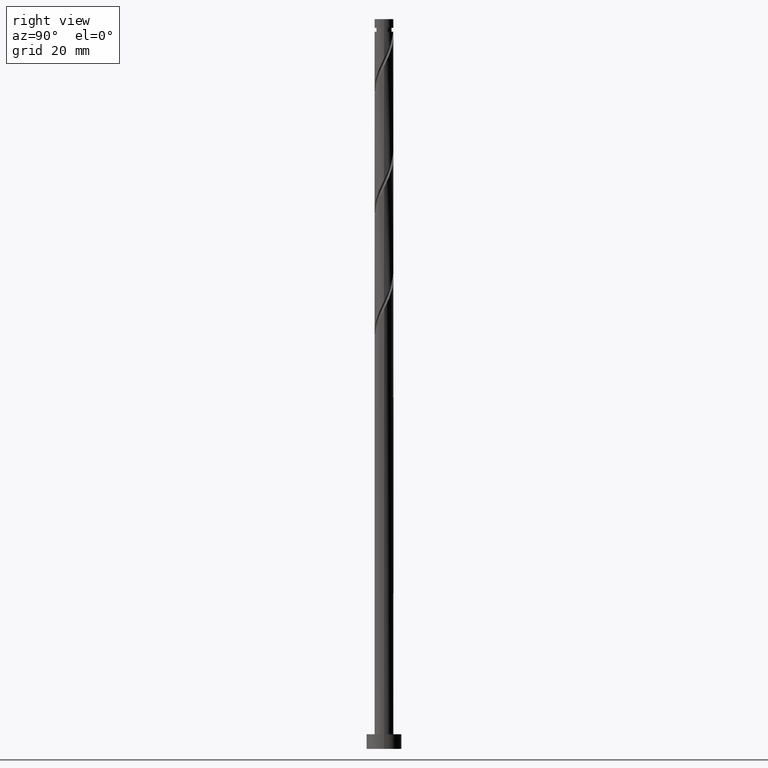
[diagram: clean part render]
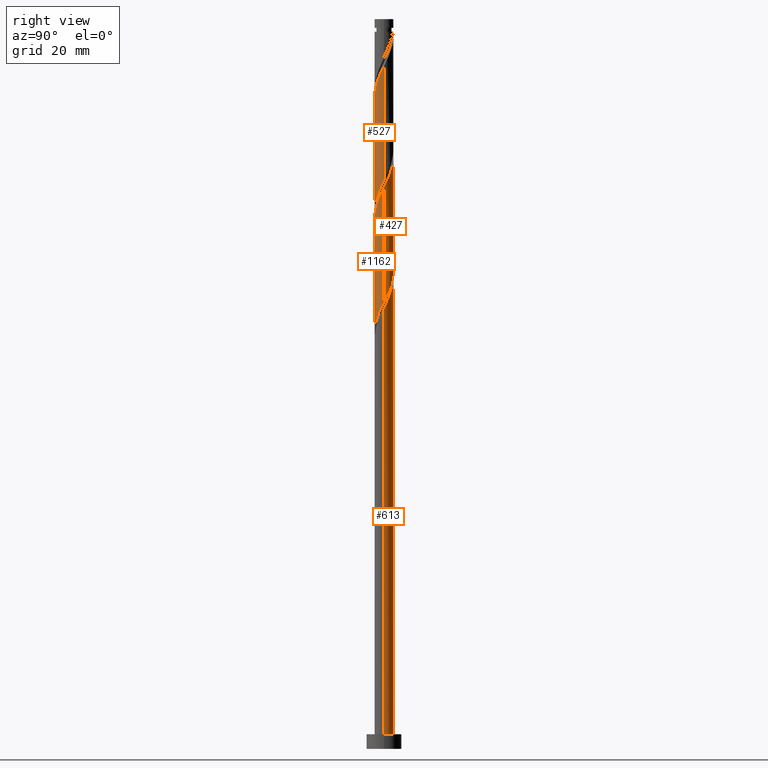
[diagram: same view with one multi-face feature highlighted, each face labeled with its STEP entity id]
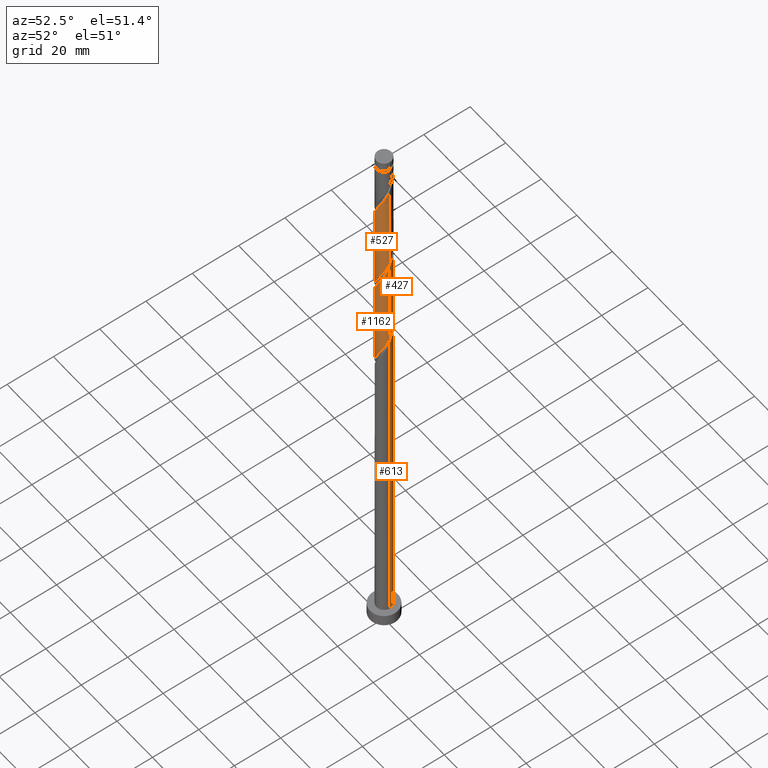
[diagram: same view with one multi-face feature highlighted, each face labeled with its STEP entity id]
A machine part, right view. The highlighted faces form ONE feature: a constant-radius fillet chain: 4 tangent blend faces with common blend radius 3.25 mm. The faces share edges in the B-rep.
A second angle (auxiliary view) of the same feature is appended — it is thin or edge-on in the first view.
Their STEP definitions:
[1] entity #527 (Cylinder):
#38 = CARTESIAN_POINT ( 'NONE',  ( 2.358742199564651365, -2.270365900294405659, 228.8641975902696117 ) ) ;
#43 = CARTESIAN_POINT ( 'NONE',  ( 0.1342716989306146913, -3.247225140156789980, 184.7936847697567941 ) ) ;
#52 = CARTESIAN_POINT ( 'NONE',  ( -0.6467418341193047482, -3.184999999999999165, 183.1911206671927062 ) ) ;
#116 = EDGE_CURVE ( 'NONE', #1040, #1117, #1231, .T. ) ;
#160 = ORIENTED_EDGE ( 'NONE', *, *, #234, .F. ) ;
#162 = CARTESIAN_POINT ( 'NONE',  ( -3.239733877669285445, -0.2581170313674804317, 213.6398386159106337 ) ) ;
#176 = CARTESIAN_POINT ( 'NONE',  ( -3.083821650335325515, -1.025935684593889397, 215.2424027184746933 ) ) ;
#187 = CARTESIAN_POINT ( 'NONE',  ( 3.250000000000004441, -1.719932931327951280E-15, 233.9465321246341318 ) ) ;
#190 = CARTESIAN_POINT ( 'NONE',  ( 3.208392795817199605, -0.6514919439064300599, 193.6077873338593918 ) ) ;
#197 = CARTESIAN_POINT ( 'NONE',  ( -3.250000000000003997, -0.1292626735945020811, 213.3773697069337913 ) ) ;
#201 = CARTESIAN_POINT ( 'NONE',  ( -2.833535561689597859, -1.639909237082070481, 177.5821463082183129 ) ) ;
#219 = CARTESIAN_POINT ( 'NONE',  ( 0.5285562154176349781, -3.230921604182013240, 185.5949668210388097 ) ) ;
#233 = VERTEX_POINT ( 'NONE', #187 ) ;
#234 = EDGE_CURVE ( 'NONE', #233, #1040, #739, .T. ) ;
#261 = CARTESIAN_POINT ( 'NONE',  ( 0.000000000000000000, 0.000000000000000000, 250.0000000000000000 ) ) ;
#306 = CARTESIAN_POINT ( 'NONE',  ( -2.538127330985534780, -2.067881944631017710, 217.6462488723208537 ) ) ;
#321 = CARTESIAN_POINT ( 'NONE',  ( 2.959250504853443875, -1.400379425281347734, 192.0052232312953322 ) ) ;
#333 = CARTESIAN_POINT ( 'NONE',  ( -2.596138880627123502, -1.955137568688235516, 178.3834283595004422 ) ) ;
#393 = CARTESIAN_POINT ( 'NONE',  ( -3.250000000000000444, 0.000000000000000000, 250.0000000000000000 ) ) ;
#438 = CARTESIAN_POINT ( 'NONE',  ( -1.627952452366745018, -2.812875897161679628, 220.0500950261670141 ) ) ;
#451 = CARTESIAN_POINT ( 'NONE',  ( -0.1342716989306176611, -3.247225140156793977, 223.2552232312952469 ) ) ;
#459 = CARTESIAN_POINT ( 'NONE',  ( 0.2600128175564029864, -3.263528676131572936, 224.0565052825773762 ) ) ;
#462 = CARTESIAN_POINT ( 'NONE',  ( 3.239733877669281892, -0.2581170313674834849, 194.4090693851414073 ) ) ;
#472 = CARTESIAN_POINT ( 'NONE',  ( -2.052804757022350213, -2.519621525060145029, 179.9859924620644733 ) ) ;
#481 = CARTESIAN_POINT ( 'NONE',  ( 3.250000000000000444, 3.980102097228898231E-16, 250.0000000000000000 ) ) ;
#494 = CARTESIAN_POINT ( 'NONE',  ( 3.083821650335321518, -1.025935684593890507, 192.8065052825773478 ) ) ;
#527 = ADVANCED_FACE ( 'NONE', ( #618 ), #536, .T. ) ;
#528 = CARTESIAN_POINT ( 'NONE',  ( -3.250000000000004441, -3.275350538789750667E-15, 213.1131987913008174 ) ) ;
#536 = CYLINDRICAL_SURFACE ( 'NONE', #865, 3.250000000000000444 ) ;
#588 = CARTESIAN_POINT ( 'NONE',  ( -2.748688917919491992, -1.734130684956183055, 216.8449668210388666 ) ) ;
#599 = CARTESIAN_POINT ( 'NONE',  ( -2.253812376671873619, -2.341544313217391871, 218.4475309236028977 ) ) ;
#614 = CARTESIAN_POINT ( 'NONE',  ( -1.033470850682205233, -3.106471323868431167, 182.3898386159106053 ) ) ;
#618 = FACE_OUTER_BOUND ( 'NONE', #685, .T. ) ;
#624 = CARTESIAN_POINT ( 'NONE',  ( -3.207364547986603753, -0.5247024455047699654, 175.1783001543721809 ) ) ;
#646 = VECTOR ( 'NONE', #1063, 1000.000000000000000 ) ;
#685 = EDGE_LOOP ( 'NONE', ( #160, #953, #1434, #830 ) ) ;
#728 = CARTESIAN_POINT ( 'NONE',  ( 1.390169082581127480, -2.937674236847164888, 226.4603514364234513 ) ) ;
#739 = LINE ( 'NONE', #481, #646 ) ;
#741 = CARTESIAN_POINT ( 'NONE',  ( 2.052804757022351545, -2.519621525060148581, 228.0629155389875393 ) ) ;
#756 = CARTESIAN_POINT ( 'NONE',  ( 1.627952452366741243, -2.812875897161677852, 187.9988129748850270 ) ) ;
#763 = CARTESIAN_POINT ( 'NONE',  ( -0.5285562154176384198, -3.230921604182017681, 222.4539411800132029 ) ) ;
#767 = CARTESIAN_POINT ( 'NONE',  ( -2.988594849070721260, -1.277028123460071773, 176.7808642569362974 ) ) ;
#774 = CARTESIAN_POINT ( 'NONE',  ( 1.033470850682204567, -3.106471323868436052, 225.6590693851414073 ) ) ;
#830 = ORIENTED_EDGE ( 'NONE', *, *, #116, .F. ) ;
#836 = CARTESIAN_POINT ( 'NONE',  ( 3.250000000000000000, 4.815812207718297189E-15, 194.9357092097512520 ) ) ;
#865 = AXIS2_PLACEMENT_3D ( 'NONE', #261, #943, #1671 ) ;
#883 = CARTESIAN_POINT ( 'NONE',  ( 2.833535561689601412, -1.639909237082075810, 230.4667616928336997 ) ) ;
#893 = CARTESIAN_POINT ( 'NONE',  ( 2.596138880627125722, -1.955137568688240179, 229.6654796415516273 ) ) ;
#899 = CARTESIAN_POINT ( 'NONE',  ( 2.748688917919487995, -1.734130684956182611, 191.2039411800131461 ) ) ;
#920 = CARTESIAN_POINT ( 'NONE',  ( 0.9074818488964557783, -3.120733358350801456, 186.3962488723209106 ) ) ;
#943 = DIRECTION ( 'NONE',  ( -0.000000000000000000, -0.000000000000000000, -1.000000000000000000 ) ) ;
#953 = ORIENTED_EDGE ( 'NONE', *, *, #1563, .F. ) ;
#954 = EDGE_CURVE ( 'NONE', #1449, #1117, #1403, .T. ) ;
#987 = DIRECTION ( 'NONE',  ( -0.000000000000000000, -0.000000000000000000, -1.000000000000000000 ) ) ;
#1020 = CARTESIAN_POINT ( 'NONE',  ( 0.6467418341193043041, -3.185000000000004050, 224.8577873338593065 ) ) ;
#1040 = VERTEX_POINT ( 'NONE', #836 ) ;
#1046 = CARTESIAN_POINT ( 'NONE',  ( -2.358742199564648256, -2.270365900294400774, 179.1847104107824293 ) ) ;
#1058 = CARTESIAN_POINT ( 'NONE',  ( 2.253812376671869622, -2.341544313217390982, 189.6013770774490865 ) ) ;
#1063 = DIRECTION ( 'NONE',  ( -0.000000000000000000, -0.000000000000000000, -1.000000000000000000 ) ) ;
#1117 = VERTEX_POINT ( 'NONE', #1285 ) ;
#1160 = CARTESIAN_POINT ( 'NONE',  ( -1.969497422358212013, -2.615206681803767808, 219.2488129748849417 ) ) ;
#1171 = CARTESIAN_POINT ( 'NONE',  ( 1.746867314480051059, -2.768877149825894612, 227.2616334877054953 ) ) ;
#1179 = CARTESIAN_POINT ( 'NONE',  ( 3.143654136451849102, -0.9141470098380763964, 232.0693257953977877 ) ) ;
#1183 = CARTESIAN_POINT ( 'NONE',  ( -1.390169082581128146, -2.937674236847160003, 181.5885565646285897 ) ) ;
#1194 = CARTESIAN_POINT ( 'NONE',  ( -3.249999999999999112, -0.2640834252453963527, 174.6420766137662213 ) ) ;
#1231 =( BOUNDED_CURVE ( )  B_SPLINE_CURVE ( 2, ( #1314, #1736, #462, #190, #494, #321, #899, #1457, #1058, #1469, #756, #1323, #920, #219, #43, #1482, #52, #614, #1183, #1746, #472, #1046, #333, #201, #767, #1333, #624, #1194, #1755 ),
 .UNSPECIFIED., .F., .T. ) 
 B_SPLINE_CURVE_WITH_KNOTS ( ( 3, 2, 2, 2, 2, 2, 2, 2, 2, 2, 2, 2, 2, 2, 3 ),
 ( 0.5545271625973831053, 0.5576923076923077094, 0.5673076923076922906, 0.5769230769230768718, 0.5865384615384615641, 0.5961538461538461453, 0.6057692307692307265, 0.6153846153846154188, 0.6250000000000000000, 0.6346153846153845812, 0.6442307692307692735, 0.6538461538461538547, 0.6634615384615384359, 0.6730769230769231282, 0.6795271625973833274 ),
 .UNSPECIFIED. ) 
 CURVE ( )  GEOMETRIC_REPRESENTATION_ITEM ( )  RATIONAL_B_SPLINE_CURVE ( ( 0.9061636035682859580, 0.9069090390690746073, 0.9090909090909312651, 0.9024626128164348060, 0.9090909090909312651, 0.9024626128164348060, 0.9090909090909312651, 0.9024626128164348060, 0.9090909090909312651, 0.9024626128164348060, 0.9090909090909312651, 0.9024626128164348060, 0.9090909090909312651, 0.9024626128164348060, 0.9090909090909312651, 0.9024626128164348060, 0.9090909090909312651, 0.9024626128164348060, 0.9090909090909312651, 0.9024626128164348060, 0.9090909090909312651, 0.9024626128164348060, 0.9090909090909312651, 0.9024626128164348060, 0.9090909090909312651, 0.9024626128164348060, 0.9090909090909312651, 0.9046444828382913528, 0.9061636035682860690 ) ) 
 REPRESENTATION_ITEM ( '' )  );
#1285 = CARTESIAN_POINT ( 'NONE',  ( -3.249999999999999556, 2.931363952524181395E-15, 174.1023758764178808 ) ) ;
#1314 = CARTESIAN_POINT ( 'NONE',  ( 3.250000000000000000, 4.815812207718297189E-15, 194.9357092097512805 ) ) ;
#1323 = CARTESIAN_POINT ( 'NONE',  ( 1.286407482375274691, -3.010545112519589228, 187.1975309236029261 ) ) ;
#1329 = CARTESIAN_POINT ( 'NONE',  ( 3.250000000000002665, -0.2640834252454066777, 233.4068313872857345 ) ) ;
#1333 = CARTESIAN_POINT ( 'NONE',  ( -3.143654136451844661, -0.9141470098380726217, 175.9795822056541965 ) ) ;
#1371 = VECTOR ( 'NONE', #987, 1000.000000000000000 ) ;
#1403 = LINE ( 'NONE', #393, #1371 ) ;
#1430 = CARTESIAN_POINT ( 'NONE',  ( -0.9074818488964582208, -3.120733358350804121, 221.6526591287310737 ) ) ;
#1434 = ORIENTED_EDGE ( 'NONE', *, *, #954, .T. ) ;
#1449 = VERTEX_POINT ( 'NONE', #528 ) ;
#1457 = CARTESIAN_POINT ( 'NONE',  ( 2.538127330985529007, -2.067881944631016822, 190.4026591287310737 ) ) ;
#1465 = CARTESIAN_POINT ( 'NONE',  ( 2.988594849070723924, -1.277028123460074660, 231.2680437441157153 ) ) ;
#1469 = CARTESIAN_POINT ( 'NONE',  ( 1.969497422358207128, -2.615206681803765587, 188.8000950261670425 ) ) ;
#1476 = CARTESIAN_POINT ( 'NONE',  ( 3.250000000000004441, -1.719932931327951280E-15, 233.9465321246341318 ) ) ;
#1482 = CARTESIAN_POINT ( 'NONE',  ( -0.2600128175564051514, -3.263528676131567163, 183.9924027184747217 ) ) ;
#1563 = EDGE_CURVE ( 'NONE', #1449, #233, #1835, .T. ) ;
#1591 = CARTESIAN_POINT ( 'NONE',  ( 3.207364547986608638, -0.5247024455047721858, 232.8706078466798317 ) ) ;
#1607 = CARTESIAN_POINT ( 'NONE',  ( -2.959250504853448760, -1.400379425281349732, 216.0436847697567373 ) ) ;
#1670 = CARTESIAN_POINT ( 'NONE',  ( -3.250000000000004441, -3.275350538789750667E-15, 213.1131987913008459 ) ) ;
#1671 = DIRECTION ( 'NONE',  ( -1.000000000000000000, 0.000000000000000000, 0.000000000000000000 ) ) ;
#1723 = CARTESIAN_POINT ( 'NONE',  ( -1.286407482375277800, -3.010545112519592781, 220.8513770774491149 ) ) ;
#1732 = CARTESIAN_POINT ( 'NONE',  ( -3.208392795817203602, -0.6514919439064299489, 214.4411206671926777 ) ) ;
#1736 = CARTESIAN_POINT ( 'NONE',  ( 3.250000000000000888, -0.1292626735944912009, 194.6715382941182781 ) ) ;
#1746 = CARTESIAN_POINT ( 'NONE',  ( -1.746867314480051059, -2.768877149825889283, 180.7872745133465457 ) ) ;
#1755 = CARTESIAN_POINT ( 'NONE',  ( -3.249999999999999112, 2.931363952524181000E-15, 174.1023758764178808 ) ) ;
#1835 =( BOUNDED_CURVE ( )  B_SPLINE_CURVE ( 2, ( #1670, #197, #162, #1732, #176, #1607, #588, #306, #599, #1160, #438, #1723, #1430, #763, #451, #459, #1020, #774, #728, #1171, #741, #38, #893, #883, #1465, #1179, #1591, #1329, #1476 ),
 .UNSPECIFIED., .F., .T. ) 
 B_SPLINE_CURVE_WITH_KNOTS ( ( 3, 2, 2, 2, 2, 2, 2, 2, 2, 2, 2, 2, 2, 2, 3 ),
 ( 0.5545271625973834384, 0.5576923076923077094, 0.5673076923076922906, 0.5769230769230768718, 0.5865384615384615641, 0.5961538461538461453, 0.6057692307692308376, 0.6153846153846154188, 0.6250000000000000000, 0.6346153846153845812, 0.6442307692307691624, 0.6538461538461538547, 0.6634615384615384359, 0.6730769230769231282, 0.6795271625973831053 ),
 .UNSPECIFIED. ) 
 CURVE ( )  GEOMETRIC_REPRESENTATION_ITEM ( )  RATIONAL_B_SPLINE_CURVE ( ( 0.9061636035682922863, 0.9069090390690809356, 0.9090909090909373713, 0.9024626128164408012, 0.9090909090909373713, 0.9024626128164408012, 0.9090909090909373713, 0.9024626128164408012, 0.9090909090909373713, 0.9024626128164408012, 0.9090909090909373713, 0.9024626128164408012, 0.9090909090909373713, 0.9024626128164408012, 0.9090909090909373713, 0.9024626128164408012, 0.9090909090909373713, 0.9024626128164408012, 0.9090909090909373713, 0.9024626128164408012, 0.9090909090909373713, 0.9024626128164408012, 0.9090909090909373713, 0.9024626128164408012, 0.9090909090909373713, 0.9024626128164408012, 0.9090909090909373713, 0.9046444828382974590, 0.9061636035682920642 ) ) 
 REPRESENTATION_ITEM ( '' )  );
[2] entity #427 (Cylinder):
#26 = CARTESIAN_POINT ( 'NONE',  ( -2.596138880627126166, 1.955137568688239291, 208.8321463082182845 ) ) ;
#48 = CARTESIAN_POINT ( 'NONE',  ( 2.748688917919491992, 1.734130684956183499, 196.0116334877054953 ) ) ;
#74 = CARTESIAN_POINT ( 'NONE',  ( 0.6467418341193049702, 3.184999999999999165, 162.3577873338593633 ) ) ;
#96 = CARTESIAN_POINT ( 'NONE',  ( -1.627952452366741465, 2.812875897161677852, 167.1654796415516557 ) ) ;
#147 = AXIS2_PLACEMENT_3D ( 'NONE', #1514, #216, #357 ) ;
#174 = CARTESIAN_POINT ( 'NONE',  ( -2.052804757022351545, 2.519621525060148581, 207.2295822056542534 ) ) ;
#185 = CARTESIAN_POINT ( 'NONE',  ( 3.143654136451844661, 0.9141470098380707343, 155.1462488723209106 ) ) ;
#194 = CARTESIAN_POINT ( 'NONE',  ( 3.249999999999998224, 0.2640834252454046793, 153.8087432804328785 ) ) ;
#211 = EDGE_CURVE ( 'NONE', #1009, #1449, #1609, .T. ) ;
#216 = DIRECTION ( 'NONE',  ( -0.000000000000000000, -0.000000000000000000, -1.000000000000000000 ) ) ;
#235 = CYLINDRICAL_SURFACE ( 'NONE', #147, 3.250000000000000444 ) ;
#295 = CARTESIAN_POINT ( 'NONE',  ( 3.208392795817203602, 0.6514919439064295048, 193.6077873338593918 ) ) ;
#316 = CARTESIAN_POINT ( 'NONE',  ( 2.538127330985536112, 2.067881944631015934, 196.8129155389875393 ) ) ;
#327 = CARTESIAN_POINT ( 'NONE',  ( -1.390169082581128590, 2.937674236847164444, 205.6270181030900801 ) ) ;
#337 = CARTESIAN_POINT ( 'NONE',  ( 3.207364547986603753, 0.5247024455047700764, 154.3449668210388097 ) ) ;
#357 = DIRECTION ( 'NONE',  ( -1.000000000000000000, 0.000000000000000000, 0.000000000000000000 ) ) ;
#368 = CARTESIAN_POINT ( 'NONE',  ( -3.250000000000000000, 0.1292626735944986394, 173.8382049607849069 ) ) ;
#393 = CARTESIAN_POINT ( 'NONE',  ( -3.250000000000000444, 0.000000000000000000, 250.0000000000000000 ) ) ;
#402 = CARTESIAN_POINT ( 'NONE',  ( -0.5285562154176360883, 3.230921604182012352, 164.7616334877054669 ) ) ;
#406 = EDGE_LOOP ( 'NONE', ( #1177, #914, #891, #1367 ) ) ;
#413 = CARTESIAN_POINT ( 'NONE',  ( 3.250000000000000000, 4.815812207718297189E-15, 153.2690425430845664 ) ) ;
#427 = ADVANCED_FACE ( 'NONE', ( #1244 ), #235, .T. ) ;
#466 = CARTESIAN_POINT ( 'NONE',  ( 2.988594849070721704, 1.277028123460071329, 155.9475309236029545 ) ) ;
#491 = CARTESIAN_POINT ( 'NONE',  ( -2.833535561689601412, 1.639909237082074922, 209.6334283595004138 ) ) ;
#528 = CARTESIAN_POINT ( 'NONE',  ( -3.250000000000004441, -3.275350538789750667E-15, 213.1131987913008174 ) ) ;
#529 = CARTESIAN_POINT ( 'NONE',  ( -0.9074818488964560004, 3.120733358350801456, 165.5629155389875962 ) ) ;
#543 = CARTESIAN_POINT ( 'NONE',  ( -3.083821650335321962, 1.025935684593889397, 171.9731719492439765 ) ) ;
#553 = EDGE_CURVE ( 'NONE', #1117, #1136, #900, .T. ) ;
#555 = CARTESIAN_POINT ( 'NONE',  ( 3.250000000000000444, 3.980102097228898231E-16, 250.0000000000000000 ) ) ;
#560 = CARTESIAN_POINT ( 'NONE',  ( 3.250000000000003553, 1.286210713862641960E-15, 192.2798654579674462 ) ) ;
#578 = CARTESIAN_POINT ( 'NONE',  ( 3.239733877669285445, 0.2581170313674792105, 192.8065052825772625 ) ) ;
#620 = CARTESIAN_POINT ( 'NONE',  ( 2.253812376671874063, 2.341544313217391871, 197.6141975902696117 ) ) ;
#666 = CARTESIAN_POINT ( 'NONE',  ( 0.2600128175564044852, 3.263528676131567607, 163.1590693851414358 ) ) ;
#727 = CARTESIAN_POINT ( 'NONE',  ( 1.627952452366745684, 2.812875897161679628, 199.2167616928336713 ) ) ;
#801 = CARTESIAN_POINT ( 'NONE',  ( -3.208392795817199605, 0.6514919439064297269, 172.7744540005260490 ) ) ;
#871 = CARTESIAN_POINT ( 'NONE',  ( 3.083821650335326403, 1.025935684593887620, 194.4090693851413789 ) ) ;
#882 = CARTESIAN_POINT ( 'NONE',  ( -3.250000000000004441, 0.2640834252453932995, 212.5734980539524486 ) ) ;
#891 = ORIENTED_EDGE ( 'NONE', *, *, #553, .F. ) ;
#892 = CARTESIAN_POINT ( 'NONE',  ( -3.143654136451849546, 0.9141470098380747311, 211.2359924620644449 ) ) ;
#900 =( BOUNDED_CURVE ( )  B_SPLINE_CURVE ( 2, ( #1502, #368, #971, #801, #543, #1662, #1789, #1088, #963, #952, #96, #1512, #529, #402, #1374, #666, #74, #1029, #1208, #924, #1189, #1448, #1616, #1078, #466, #185, #337, #194, #1646 ),
 .UNSPECIFIED., .F., .T. ) 
 B_SPLINE_CURVE_WITH_KNOTS ( ( 3, 2, 2, 2, 2, 2, 2, 2, 2, 2, 2, 2, 2, 2, 3 ),
 ( 0.6795271625973833274, 0.6826923076923077094, 0.6923076923076922906, 0.7019230769230768718, 0.7115384615384615641, 0.7211538461538461453, 0.7307692307692307265, 0.7403846153846154188, 0.7500000000000000000, 0.7596153846153845812, 0.7692307692307692735, 0.7788461538461538547, 0.7884615384615384359, 0.7980769230769231282, 0.8045271625973831053 ),
 .UNSPECIFIED. ) 
 CURVE ( )  GEOMETRIC_REPRESENTATION_ITEM ( )  RATIONAL_B_SPLINE_CURVE ( ( 0.9061636035682860690, 0.9069090390690747183, 0.9090909090909312651, 0.9024626128164348060, 0.9090909090909312651, 0.9024626128164348060, 0.9090909090909312651, 0.9024626128164348060, 0.9090909090909312651, 0.9024626128164348060, 0.9090909090909312651, 0.9024626128164348060, 0.9090909090909312651, 0.9024626128164348060, 0.9090909090909312651, 0.9024626128164348060, 0.9090909090909312651, 0.9024626128164348060, 0.9090909090909312651, 0.9024626128164348060, 0.9090909090909312651, 0.9024626128164348060, 0.9090909090909312651, 0.9024626128164348060, 0.9090909090909312651, 0.9024626128164348060, 0.9090909090909312651, 0.9046444828382914638, 0.9061636035682859580 ) ) 
 REPRESENTATION_ITEM ( '' )  );
#914 = ORIENTED_EDGE ( 'NONE', *, *, #1111, .T. ) ;
#915 = CARTESIAN_POINT ( 'NONE',  ( -2.988594849070723924, 1.277028123460074660, 210.4347104107824009 ) ) ;
#924 = CARTESIAN_POINT ( 'NONE',  ( 1.746867314480051059, 2.768877149825889283, 159.9539411800131745 ) ) ;
#952 = CARTESIAN_POINT ( 'NONE',  ( -1.969497422358208016, 2.615206681803764255, 167.9667616928336713 ) ) ;
#954 = EDGE_CURVE ( 'NONE', #1449, #1117, #1403, .T. ) ;
#963 = CARTESIAN_POINT ( 'NONE',  ( -2.253812376671869622, 2.341544313217390982, 168.7680437441157437 ) ) ;
#971 = CARTESIAN_POINT ( 'NONE',  ( -3.239733877669281892, 0.2581170313674815975, 173.5757360518080645 ) ) ;
#987 = DIRECTION ( 'NONE',  ( -0.000000000000000000, -0.000000000000000000, -1.000000000000000000 ) ) ;
#1009 = VERTEX_POINT ( 'NONE', #1270 ) ;
#1029 = CARTESIAN_POINT ( 'NONE',  ( 1.033470850682205677, 3.106471323868431167, 161.5565052825773478 ) ) ;
#1031 = CARTESIAN_POINT ( 'NONE',  ( -3.207364547986608194, 0.5247024455047719638, 212.0372745133464605 ) ) ;
#1041 = CARTESIAN_POINT ( 'NONE',  ( 2.959250504853449648, 1.400379425281348400, 195.2103514364234513 ) ) ;
#1053 = CARTESIAN_POINT ( 'NONE',  ( -1.033470850682205011, 3.106471323868435608, 204.8257360518080645 ) ) ;
#1078 = CARTESIAN_POINT ( 'NONE',  ( 2.833535561689597859, 1.639909237082068927, 156.7488129748849133 ) ) ;
#1088 = CARTESIAN_POINT ( 'NONE',  ( -2.538127330985530783, 2.067881944631015934, 169.5693257953977877 ) ) ;
#1111 = EDGE_CURVE ( 'NONE', #1009, #1136, #1564, .T. ) ;
#1117 = VERTEX_POINT ( 'NONE', #1285 ) ;
#1136 = VERTEX_POINT ( 'NONE', #413 ) ;
#1145 = DIRECTION ( 'NONE',  ( -0.000000000000000000, -0.000000000000000000, -1.000000000000000000 ) ) ;
#1177 = ORIENTED_EDGE ( 'NONE', *, *, #211, .F. ) ;
#1189 = CARTESIAN_POINT ( 'NONE',  ( 2.052804757022351545, 2.519621525060143696, 159.1526591287311589 ) ) ;
#1190 = CARTESIAN_POINT ( 'NONE',  ( -2.358742199564651365, 2.270365900294405659, 208.0308642569362405 ) ) ;
#1208 = CARTESIAN_POINT ( 'NONE',  ( 1.390169082581129256, 2.937674236847159559, 160.7552232312952754 ) ) ;
#1244 = FACE_OUTER_BOUND ( 'NONE', #406, .T. ) ;
#1270 = CARTESIAN_POINT ( 'NONE',  ( 3.250000000000003553, 1.286210713862641960E-15, 192.2798654579674462 ) ) ;
#1285 = CARTESIAN_POINT ( 'NONE',  ( -3.249999999999999556, 2.931363952524181395E-15, 174.1023758764178808 ) ) ;
#1291 = CARTESIAN_POINT ( 'NONE',  ( 3.250000000000005329, 0.1292626735944855110, 192.5440363736003917 ) ) ;
#1301 = CARTESIAN_POINT ( 'NONE',  ( 0.1342716989306194375, 3.247225140156793977, 202.4218898979618757 ) ) ;
#1310 = CARTESIAN_POINT ( 'NONE',  ( -0.6467418341193038600, 3.185000000000004050, 204.0244540005259921 ) ) ;
#1328 = CARTESIAN_POINT ( 'NONE',  ( 0.9074818488964597751, 3.120733358350804121, 200.8193257953977877 ) ) ;
#1367 = ORIENTED_EDGE ( 'NONE', *, *, #954, .F. ) ;
#1371 = VECTOR ( 'NONE', #987, 1000.000000000000000 ) ;
#1374 = CARTESIAN_POINT ( 'NONE',  ( -0.1342716989306157460, 3.247225140156789092, 163.9603514364234798 ) ) ;
#1403 = LINE ( 'NONE', #393, #1371 ) ;
#1448 = CARTESIAN_POINT ( 'NONE',  ( 2.358742199564649145, 2.270365900294400774, 158.3513770774490297 ) ) ;
#1449 = VERTEX_POINT ( 'NONE', #528 ) ;
#1450 = CARTESIAN_POINT ( 'NONE',  ( -0.2600128175564026534, 3.263528676131572936, 203.2231719492440050 ) ) ;
#1463 = CARTESIAN_POINT ( 'NONE',  ( -1.746867314480052169, 2.768877149825894612, 206.4283001543721241 ) ) ;
#1475 = CARTESIAN_POINT ( 'NONE',  ( -3.250000000000004441, -3.275350538789750667E-15, 213.1131987913008459 ) ) ;
#1502 = CARTESIAN_POINT ( 'NONE',  ( -3.249999999999999112, 2.931363952524181000E-15, 174.1023758764178808 ) ) ;
#1512 = CARTESIAN_POINT ( 'NONE',  ( -1.286407482375275357, 3.010545112519589228, 166.3641975902695549 ) ) ;
#1514 = CARTESIAN_POINT ( 'NONE',  ( 0.000000000000000000, 0.000000000000000000, 250.0000000000000000 ) ) ;
#1564 = LINE ( 'NONE', #555, #1570 ) ;
#1570 = VECTOR ( 'NONE', #1145, 1000.000000000000000 ) ;
#1580 = CARTESIAN_POINT ( 'NONE',  ( 0.5285562154176385308, 3.230921604182017681, 201.6206078466798317 ) ) ;
#1590 = CARTESIAN_POINT ( 'NONE',  ( 1.286407482375278466, 3.010545112519593225, 200.0180437441157721 ) ) ;
#1605 = CARTESIAN_POINT ( 'NONE',  ( 1.969497422358213345, 2.615206681803766919, 198.4154796415516557 ) ) ;
#1609 =( BOUNDED_CURVE ( )  B_SPLINE_CURVE ( 2, ( #560, #1291, #578, #295, #871, #1041, #48, #316, #620, #1605, #727, #1590, #1328, #1580, #1301, #1450, #1310, #1053, #327, #1463, #174, #1190, #26, #491, #915, #892, #1031, #882, #1475 ),
 .UNSPECIFIED., .F., .T. ) 
 B_SPLINE_CURVE_WITH_KNOTS ( ( 3, 2, 2, 2, 2, 2, 2, 2, 2, 2, 2, 2, 2, 2, 3 ),
 ( 0.4295271625973830498, 0.4326923076923077094, 0.4423076923076922906, 0.4519230769230768718, 0.4615384615384615641, 0.4711538461538461453, 0.4807692307692307265, 0.4903846153846154188, 0.5000000000000000000, 0.5096153846153845812, 0.5192307692307691624, 0.5288461538461538547, 0.5384615384615384359, 0.5480769230769231282, 0.5545271625973834384 ),
 .UNSPECIFIED. ) 
 CURVE ( )  GEOMETRIC_REPRESENTATION_ITEM ( )  RATIONAL_B_SPLINE_CURVE ( ( 0.9061636035682919532, 0.9069090390690806025, 0.9090909090909373713, 0.9024626128164408012, 0.9090909090909373713, 0.9024626128164408012, 0.9090909090909373713, 0.9024626128164408012, 0.9090909090909373713, 0.9024626128164408012, 0.9090909090909373713, 0.9024626128164408012, 0.9090909090909373713, 0.9024626128164408012, 0.9090909090909373713, 0.9024626128164408012, 0.9090909090909373713, 0.9024626128164408012, 0.9090909090909373713, 0.9024626128164408012, 0.9090909090909373713, 0.9024626128164408012, 0.9090909090909373713, 0.9024626128164408012, 0.9090909090909373713, 0.9024626128164408012, 0.9090909090909373713, 0.9046444828382973480, 0.9061636035682922863 ) ) 
 REPRESENTATION_ITEM ( '' )  );
#1616 = CARTESIAN_POINT ( 'NONE',  ( 2.596138880627123946, 1.955137568688235072, 157.5500950261670425 ) ) ;
#1646 = CARTESIAN_POINT ( 'NONE',  ( 3.250000000000000000, 4.815812207718297189E-15, 153.2690425430845664 ) ) ;
#1662 = CARTESIAN_POINT ( 'NONE',  ( -2.959250504853443875, 1.400379425281347956, 171.1718898979619041 ) ) ;
#1789 = CARTESIAN_POINT ( 'NONE',  ( -2.748688917919487995, 1.734130684956181945, 170.3706078466798317 ) ) ;
[3] entity #1162 (Cylinder):
#1 = ORIENTED_EDGE ( 'NONE', *, *, #1600, .T. ) ;
#15 = CARTESIAN_POINT ( 'NONE',  ( -1.969497422358212013, -2.615206681803767808, 177.5821463082183413 ) ) ;
#60 = DIRECTION ( 'NONE',  ( -0.000000000000000000, -0.000000000000000000, -1.000000000000000000 ) ) ;
#69 = CARTESIAN_POINT ( 'NONE',  ( 3.250000000000000000, 4.815812207718297189E-15, 153.2690425430845664 ) ) ;
#80 = CARTESIAN_POINT ( 'NONE',  ( 1.286407482375274691, -3.010545112519589228, 145.5308642569362974 ) ) ;
#86 = CARTESIAN_POINT ( 'NONE',  ( -1.390169082581128146, -2.937674236847160003, 139.9218898979618757 ) ) ;
#97 = CARTESIAN_POINT ( 'NONE',  ( 1.969497422358207128, -2.615206681803765587, 147.1334283595003569 ) ) ;
#134 = CARTESIAN_POINT ( 'NONE',  ( -3.249999999999999556, 2.931363952524181395E-15, 132.4357092097512236 ) ) ;
#161 = CARTESIAN_POINT ( 'NONE',  ( -2.538127330985534780, -2.067881944631017710, 175.9795822056541965 ) ) ;
#195 = VERTEX_POINT ( 'NONE', #134 ) ;
#243 = CARTESIAN_POINT ( 'NONE',  ( 2.052804757022351545, -2.519621525060148581, 186.3962488723208537 ) ) ;
#249 = CARTESIAN_POINT ( 'NONE',  ( 1.746867314480051059, -2.768877149825894612, 185.5949668210388381 ) ) ;
#264 = CARTESIAN_POINT ( 'NONE',  ( -3.250000000000003997, 7.328409881310404775E-15, 171.4465321246341034 ) ) ;
#332 =( BOUNDED_CURVE ( )  B_SPLINE_CURVE ( 2, ( #69, #1210, #1769, #1654, #511, #1504, #379, #1647, #500, #97, #1495, #80, #1780, #370, #802, #1080, #944, #1364, #86, #520, #390, #955, #812, #667, #965, #1524, #833, #1459, #933 ),
 .UNSPECIFIED., .F., .T. ) 
 B_SPLINE_CURVE_WITH_KNOTS ( ( 3, 2, 2, 2, 2, 2, 2, 2, 2, 2, 2, 2, 2, 2, 3 ),
 ( 0.8045271625973831053, 0.8076923076923077094, 0.8173076923076922906, 0.8269230769230768718, 0.8365384615384615641, 0.8461538461538461453, 0.8557692307692307265, 0.8653846153846154188, 0.8750000000000000000, 0.8846153846153845812, 0.8942307692307692735, 0.9038461538461538547, 0.9134615384615384359, 0.9230769230769231282, 0.9295271625973832164 ),
 .UNSPECIFIED. ) 
 CURVE ( )  GEOMETRIC_REPRESENTATION_ITEM ( )  RATIONAL_B_SPLINE_CURVE ( ( 0.9061636035682859580, 0.9069090390690746073, 0.9090909090909312651, 0.9024626128164348060, 0.9090909090909312651, 0.9024626128164348060, 0.9090909090909312651, 0.9024626128164348060, 0.9090909090909312651, 0.9024626128164348060, 0.9090909090909312651, 0.9024626128164348060, 0.9090909090909312651, 0.9024626128164348060, 0.9090909090909312651, 0.9024626128164348060, 0.9090909090909312651, 0.9024626128164348060, 0.9090909090909312651, 0.9024626128164348060, 0.9090909090909312651, 0.9024626128164348060, 0.9090909090909312651, 0.9024626128164348060, 0.9090909090909312651, 0.9024626128164348060, 0.9090909090909312651, 0.9046444828382913528, 0.9061636035682860690 ) ) 
 REPRESENTATION_ITEM ( '' )  );
#348 = CARTESIAN_POINT ( 'NONE',  ( -2.748688917919491992, -1.734130684956183055, 175.1783001543721241 ) ) ;
#370 = CARTESIAN_POINT ( 'NONE',  ( 0.5285562154176349781, -3.230921604182013240, 143.9283001543721525 ) ) ;
#379 = CARTESIAN_POINT ( 'NONE',  ( 2.748688917919487995, -1.734130684956182611, 149.5372745133465173 ) ) ;
#390 = CARTESIAN_POINT ( 'NONE',  ( -2.052804757022350213, -2.519621525060145029, 138.3193257953978161 ) ) ;
#394 = EDGE_CURVE ( 'NONE', #1025, #1009, #701, .T. ) ;
#413 = CARTESIAN_POINT ( 'NONE',  ( 3.250000000000000000, 4.815812207718297189E-15, 153.2690425430845664 ) ) ;
#423 = CARTESIAN_POINT ( 'NONE',  ( 0.000000000000000000, 0.000000000000000000, 250.0000000000000000 ) ) ;
#440 = EDGE_CURVE ( 'NONE', #1136, #195, #332, .T. ) ;
#450 = CARTESIAN_POINT ( 'NONE',  ( -3.208392795817203602, -0.6514919439064299489, 172.7744540005260490 ) ) ;
#458 = CARTESIAN_POINT ( 'NONE',  ( -0.9074818488964582208, -3.120733358350804121, 179.9859924620644449 ) ) ;
#500 = CARTESIAN_POINT ( 'NONE',  ( 2.253812376671869622, -2.341544313217390982, 147.9347104107824578 ) ) ;
#511 = CARTESIAN_POINT ( 'NONE',  ( 3.083821650335321518, -1.025935684593890507, 151.1398386159106337 ) ) ;
#520 = CARTESIAN_POINT ( 'NONE',  ( -1.746867314480051059, -2.768877149825889283, 139.1206078466798317 ) ) ;
#555 = CARTESIAN_POINT ( 'NONE',  ( 3.250000000000000444, 3.980102097228898231E-16, 250.0000000000000000 ) ) ;
#587 = CARTESIAN_POINT ( 'NONE',  ( -1.627952452366745018, -2.812875897161679628, 178.3834283595004138 ) ) ;
#641 = CARTESIAN_POINT ( 'NONE',  ( 2.358742199564651365, -2.270365900294405659, 187.1975309236029261 ) ) ;
#667 = CARTESIAN_POINT ( 'NONE',  ( -2.833535561689597859, -1.639909237082070481, 135.9154796415516273 ) ) ;
#674 = CARTESIAN_POINT ( 'NONE',  ( 0.2600128175564029864, -3.263528676131572936, 182.3898386159106337 ) ) ;
#701 =( BOUNDED_CURVE ( )  B_SPLINE_CURVE ( 2, ( #1439, #1722, #1760, #450, #1170, #1630, #348, #161, #1019, #15, #587, #1731, #458, #1178, #1742, #674, #1220, #1348, #1799, #249, #243, #641, #818, #792, #1664, #1107, #1380, #782, #1090 ),
 .UNSPECIFIED., .F., .T. ) 
 B_SPLINE_CURVE_WITH_KNOTS ( ( 3, 2, 2, 2, 2, 2, 2, 2, 2, 2, 2, 2, 2, 2, 3 ),
 ( 0.3045271625973833829, 0.3076923076923077094, 0.3173076923076922906, 0.3269230769230768718, 0.3365384615384615641, 0.3461538461538461453, 0.3557692307692307265, 0.3653846153846154188, 0.3750000000000000000, 0.3846153846153845812, 0.3942307692307692735, 0.4038461538461538547, 0.4134615384615384359, 0.4230769230769231282, 0.4295271625973830498 ),
 .UNSPECIFIED. ) 
 CURVE ( )  GEOMETRIC_REPRESENTATION_ITEM ( )  RATIONAL_B_SPLINE_CURVE ( ( 0.9061636035682922863, 0.9069090390690808245, 0.9090909090909373713, 0.9024626128164408012, 0.9090909090909373713, 0.9024626128164408012, 0.9090909090909373713, 0.9024626128164408012, 0.9090909090909373713, 0.9024626128164408012, 0.9090909090909373713, 0.9024626128164408012, 0.9090909090909373713, 0.9024626128164408012, 0.9090909090909373713, 0.9024626128164408012, 0.9090909090909373713, 0.9024626128164408012, 0.9090909090909373713, 0.9024626128164408012, 0.9090909090909373713, 0.9024626128164408012, 0.9090909090909373713, 0.9024626128164408012, 0.9090909090909373713, 0.9024626128164408012, 0.9090909090909373713, 0.9046444828382975700, 0.9061636035682919532 ) ) 
 REPRESENTATION_ITEM ( '' )  );
#709 = DIRECTION ( 'NONE',  ( -1.000000000000000000, 0.000000000000000000, 0.000000000000000000 ) ) ;
#782 = CARTESIAN_POINT ( 'NONE',  ( 3.250000000000002665, -0.2640834252454089537, 191.7401647206191058 ) ) ;
#792 = CARTESIAN_POINT ( 'NONE',  ( 2.833535561689601412, -1.639909237082075810, 188.8000950261670710 ) ) ;
#802 = CARTESIAN_POINT ( 'NONE',  ( 0.1342716989306146913, -3.247225140156789980, 143.1270181030901085 ) ) ;
#812 = CARTESIAN_POINT ( 'NONE',  ( -2.596138880627123502, -1.955137568688235516, 136.7167616928336997 ) ) ;
#818 = CARTESIAN_POINT ( 'NONE',  ( 2.596138880627125722, -1.955137568688240179, 187.9988129748849701 ) ) ;
#833 = CARTESIAN_POINT ( 'NONE',  ( -3.207364547986603753, -0.5247024455047699654, 133.5116334877055237 ) ) ;
#843 = CYLINDRICAL_SURFACE ( 'NONE', #1720, 3.250000000000000444 ) ;
#933 = CARTESIAN_POINT ( 'NONE',  ( -3.249999999999999112, 2.931363952524181000E-15, 132.4357092097512236 ) ) ;
#944 = CARTESIAN_POINT ( 'NONE',  ( -0.6467418341193047482, -3.184999999999999165, 141.5244540005260490 ) ) ;
#955 = CARTESIAN_POINT ( 'NONE',  ( -2.358742199564648256, -2.270365900294400774, 137.5180437441158006 ) ) ;
#965 = CARTESIAN_POINT ( 'NONE',  ( -2.988594849070721260, -1.277028123460071773, 135.1141975902696117 ) ) ;
#1009 = VERTEX_POINT ( 'NONE', #1270 ) ;
#1019 = CARTESIAN_POINT ( 'NONE',  ( -2.253812376671873619, -2.341544313217391871, 176.7808642569362405 ) ) ;
#1025 = VERTEX_POINT ( 'NONE', #264 ) ;
#1079 = ORIENTED_EDGE ( 'NONE', *, *, #440, .F. ) ;
#1080 = CARTESIAN_POINT ( 'NONE',  ( -0.2600128175564051514, -3.263528676131567163, 142.3257360518080645 ) ) ;
#1090 = CARTESIAN_POINT ( 'NONE',  ( 3.250000000000003553, 1.286210713862641960E-15, 192.2798654579674462 ) ) ;
#1107 = CARTESIAN_POINT ( 'NONE',  ( 3.143654136451849102, -0.9141470098380763964, 190.4026591287311589 ) ) ;
#1111 = EDGE_CURVE ( 'NONE', #1009, #1136, #1564, .T. ) ;
#1134 = DIRECTION ( 'NONE',  ( -0.000000000000000000, -0.000000000000000000, -1.000000000000000000 ) ) ;
#1136 = VERTEX_POINT ( 'NONE', #413 ) ;
#1145 = DIRECTION ( 'NONE',  ( -0.000000000000000000, -0.000000000000000000, -1.000000000000000000 ) ) ;
#1162 = ADVANCED_FACE ( 'NONE', ( #1293 ), #843, .T. ) ;
#1170 = CARTESIAN_POINT ( 'NONE',  ( -3.083821650335325515, -1.025935684593889397, 173.5757360518080645 ) ) ;
#1178 = CARTESIAN_POINT ( 'NONE',  ( -0.5285562154176384198, -3.230921604182017681, 180.7872745133464889 ) ) ;
#1199 = ORIENTED_EDGE ( 'NONE', *, *, #1111, .F. ) ;
#1210 = CARTESIAN_POINT ( 'NONE',  ( 3.250000000000000888, -0.1292626735944912009, 153.0048716274515925 ) ) ;
#1220 = CARTESIAN_POINT ( 'NONE',  ( 0.6467418341193043041, -3.185000000000004050, 183.1911206671926493 ) ) ;
#1270 = CARTESIAN_POINT ( 'NONE',  ( 3.250000000000003553, 1.286210713862641960E-15, 192.2798654579674462 ) ) ;
#1293 = FACE_OUTER_BOUND ( 'NONE', #1513, .T. ) ;
#1340 = LINE ( 'NONE', #1440, #1543 ) ;
#1348 = CARTESIAN_POINT ( 'NONE',  ( 1.033470850682204567, -3.106471323868436052, 183.9924027184747786 ) ) ;
#1364 = CARTESIAN_POINT ( 'NONE',  ( -1.033470850682205233, -3.106471323868431167, 140.7231719492439197 ) ) ;
#1380 = CARTESIAN_POINT ( 'NONE',  ( 3.207364547986608638, -0.5247024455047721858, 191.2039411800131461 ) ) ;
#1439 = CARTESIAN_POINT ( 'NONE',  ( -3.250000000000003997, 7.328409881310404775E-15, 171.4465321246341034 ) ) ;
#1440 = CARTESIAN_POINT ( 'NONE',  ( -3.250000000000000444, 0.000000000000000000, 250.0000000000000000 ) ) ;
#1459 = CARTESIAN_POINT ( 'NONE',  ( -3.249999999999998668, -0.2640834252454009046, 132.9754099470995925 ) ) ;
#1495 = CARTESIAN_POINT ( 'NONE',  ( 1.627952452366741243, -2.812875897161677852, 146.3321463082183698 ) ) ;
#1504 = CARTESIAN_POINT ( 'NONE',  ( 2.959250504853443875, -1.400379425281347734, 150.3385565646285897 ) ) ;
#1513 = EDGE_LOOP ( 'NONE', ( #1199, #1653, #1, #1079 ) ) ;
#1524 = CARTESIAN_POINT ( 'NONE',  ( -3.143654136451844661, -0.9141470098380726217, 134.3129155389875393 ) ) ;
#1543 = VECTOR ( 'NONE', #60, 1000.000000000000000 ) ;
#1564 = LINE ( 'NONE', #555, #1570 ) ;
#1570 = VECTOR ( 'NONE', #1145, 1000.000000000000000 ) ;
#1600 = EDGE_CURVE ( 'NONE', #1025, #195, #1340, .T. ) ;
#1630 = CARTESIAN_POINT ( 'NONE',  ( -2.959250504853448760, -1.400379425281349732, 174.3770181030901085 ) ) ;
#1647 = CARTESIAN_POINT ( 'NONE',  ( 2.538127330985529007, -2.067881944631016822, 148.7359924620644733 ) ) ;
#1653 = ORIENTED_EDGE ( 'NONE', *, *, #394, .F. ) ;
#1654 = CARTESIAN_POINT ( 'NONE',  ( 3.208392795817199605, -0.6514919439064300599, 151.9411206671926493 ) ) ;
#1664 = CARTESIAN_POINT ( 'NONE',  ( 2.988594849070723924, -1.277028123460074660, 189.6013770774490865 ) ) ;
#1720 = AXIS2_PLACEMENT_3D ( 'NONE', #423, #1134, #709 ) ;
#1722 = CARTESIAN_POINT ( 'NONE',  ( -3.250000000000004441, -0.1292626735944998051, 171.7107030402670773 ) ) ;
#1731 = CARTESIAN_POINT ( 'NONE',  ( -1.286407482375277800, -3.010545112519592781, 179.1847104107824293 ) ) ;
#1742 = CARTESIAN_POINT ( 'NONE',  ( -0.1342716989306176611, -3.247225140156793977, 181.5885565646285897 ) ) ;
#1760 = CARTESIAN_POINT ( 'NONE',  ( -3.239733877669285445, -0.2581170313674804317, 171.9731719492438913 ) ) ;
#1769 = CARTESIAN_POINT ( 'NONE',  ( 3.239733877669281892, -0.2581170313674834849, 152.7424027184747217 ) ) ;
#1780 = CARTESIAN_POINT ( 'NONE',  ( 0.9074818488964557783, -3.120733358350801456, 144.7295822056542534 ) ) ;
#1799 = CARTESIAN_POINT ( 'NONE',  ( 1.390169082581127480, -2.937674236847164888, 184.7936847697567657 ) ) ;
[4] entity #613 (Cylinder):
#27 = CARTESIAN_POINT ( 'NONE',  ( -0.6467418341193040821, 3.185000000000004494, 120.6911206671926777 ) ) ;
#60 = DIRECTION ( 'NONE',  ( -0.000000000000000000, -0.000000000000000000, -1.000000000000000000 ) ) ;
#72 = CARTESIAN_POINT ( 'NONE',  ( -3.249999999999999112, 2.931363952524181000E-15, 132.4357092097512236 ) ) ;
#104 = CARTESIAN_POINT ( 'NONE',  ( -0.6467418341193040821, 3.185000000000004494, 120.6911206671926777 ) ) ;
#108 = DIRECTION ( 'NONE',  ( -2.370375316168907228E-30, -1.067522139062651697E-14, -1.000000000000000000 ) ) ;
#113 = CIRCLE ( 'NONE', #1534, 3.250000000000000444 ) ;
#133 = VERTEX_POINT ( 'NONE', #1625 ) ;
#134 = CARTESIAN_POINT ( 'NONE',  ( -3.249999999999999556, 2.931363952524181395E-15, 132.4357092097512236 ) ) ;
#155 = EDGE_CURVE ( 'NONE', #195, #1589, #1409, .T. ) ;
#179 = CARTESIAN_POINT ( 'NONE',  ( -2.748688917919487995, 1.734130684956181945, 128.7039411800132029 ) ) ;
#195 = VERTEX_POINT ( 'NONE', #134 ) ;
#200 = EDGE_CURVE ( 'NONE', #133, #267, #113, .T. ) ;
#209 = CARTESIAN_POINT ( 'NONE',  ( -2.538127330985530783, 2.067881944631015934, 127.9026591287311447 ) ) ;
#215 = ORIENTED_EDGE ( 'NONE', *, *, #155, .F. ) ;
#238 = CARTESIAN_POINT ( 'NONE',  ( -2.052804757022351545, 2.519621525060148581, 165.5629155389875677 ) ) ;
#264 = CARTESIAN_POINT ( 'NONE',  ( -3.250000000000003997, 7.328409881310404775E-15, 171.4465321246341034 ) ) ;
#267 = VERTEX_POINT ( 'NONE', #750 ) ;
#272 = CARTESIAN_POINT ( 'NONE',  ( -1.390169082581128590, 2.937674236847164444, 122.2936847697567515 ) ) ;
#285 = DIRECTION ( 'NONE',  ( 0.000000000000000000, 0.000000000000000000, 1.000000000000000000 ) ) ;
#309 = CARTESIAN_POINT ( 'NONE',  ( -0.1342716989306157460, 3.247225140156789092, 122.2936847697567799 ) ) ;
#320 = CARTESIAN_POINT ( 'NONE',  ( 3.208392795817203602, 0.6514919439064295048, 151.9411206671926493 ) ) ;
#331 = CARTESIAN_POINT ( 'NONE',  ( 3.083821650335326403, 1.025935684593887620, 152.7424027184746933 ) ) ;
#342 = CARTESIAN_POINT ( 'NONE',  ( -1.390169082581128590, 2.937674236847164444, 163.9603514364234229 ) ) ;
#352 = CARTESIAN_POINT ( 'NONE',  ( 3.250000000000004441, 0.1292626735944912009, 150.8773697069337345 ) ) ;
#375 = CARTESIAN_POINT ( 'NONE',  ( -2.358742199564651365, 2.270365900294405659, 124.6975309236029119 ) ) ;
#384 = CARTESIAN_POINT ( 'NONE',  ( -3.207364547986608194, 0.5247024455047719638, 170.3706078466798317 ) ) ;
#386 = CARTESIAN_POINT ( 'NONE',  ( -2.988594849070723924, 1.277028123460074660, 127.1013770774490865 ) ) ;
#398 = DIRECTION ( 'NONE',  ( 0.000000000000000000, 1.000000000000000000, -1.281026566875180490E-14 ) ) ;
#417 = EDGE_CURVE ( 'NONE', #714, #1589, #1587, .T. ) ;
#461 = FACE_OUTER_BOUND ( 'NONE', #760, .T. ) ;
#484 = CARTESIAN_POINT ( 'NONE',  ( -1.286407482375275357, 3.010545112519589228, 124.6975309236028977 ) ) ;
#485 = CARTESIAN_POINT ( 'NONE',  ( 1.627952452366745684, 2.812875897161679628, 157.5500950261669857 ) ) ;
#506 = AXIS2_PLACEMENT_3D ( 'NONE', #1035, #1596, #897 ) ;
#559 = VERTEX_POINT ( 'NONE', #913 ) ;
#562 = VECTOR ( 'NONE', #1233, 1000.000000000000000 ) ;
#613 = ADVANCED_FACE ( 'NONE', ( #461 ), #1342, .T. ) ;
#623 = CARTESIAN_POINT ( 'NONE',  ( -3.250000000000000444, 0.1292626735944941152, 132.1715382941182781 ) ) ;
#659 = CARTESIAN_POINT ( 'NONE',  ( -3.250000000000004441, 0.2640834252453955755, 170.9068313872857914 ) ) ;
#670 = VERTEX_POINT ( 'NONE', #1764 ) ;
#671 = LINE ( 'NONE', #949, #562 ) ;
#679 = CARTESIAN_POINT ( 'NONE',  ( -2.596138880627126166, 1.955137568688239291, 167.1654796415515989 ) ) ;
#704 = ORIENTED_EDGE ( 'NONE', *, *, #1425, .T. ) ;
#714 = VERTEX_POINT ( 'NONE', #27 ) ;
#744 = CARTESIAN_POINT ( 'NONE',  ( 0.6467418341193049702, 3.184999999999999165, 120.6911206671926777 ) ) ;
#750 = CARTESIAN_POINT ( 'NONE',  ( -3.250000000000000444, 0.000000000000000000, 5.000000000000000000 ) ) ;
#755 = CARTESIAN_POINT ( 'NONE',  ( -3.239733877669281892, 0.2581170313674815975, 131.9090693851414073 ) ) ;
#760 = EDGE_LOOP ( 'NONE', ( #1629, #704, #1657, #1710, #1792, #1538, #215, #1571 ) ) ;
#765 = CARTESIAN_POINT ( 'NONE',  ( -2.959250504853443875, 1.400379425281347956, 129.5052232312953038 ) ) ;
#766 = CARTESIAN_POINT ( 'NONE',  ( -1.033470850682205011, 3.106471323868435608, 163.1590693851414358 ) ) ;
#786 = CARTESIAN_POINT ( 'NONE',  ( -1.746867314480052169, 2.768877149825894612, 164.7616334877055237 ) ) ;
#798 = AXIS2_PLACEMENT_3D ( 'NONE', #1228, #108, #398 ) ;
#806 = CARTESIAN_POINT ( 'NONE',  ( -3.143654136451849546, 0.9141470098380747311, 169.5693257953978446 ) ) ;
#808 = CARTESIAN_POINT ( 'NONE',  ( -3.250000000000003109, -1.734888869861238066E-15, 129.7798654579675031 ) ) ;
#815 = EDGE_CURVE ( 'NONE', #670, #1025, #1274, .T. ) ;
#838 = DIRECTION ( 'NONE',  ( 1.000000000000000000, 0.000000000000000000, 0.000000000000000000 ) ) ;
#850 = CARTESIAN_POINT ( 'NONE',  ( -2.833535561689601412, 1.639909237082074922, 126.3000950261670425 ) ) ;
#896 = CARTESIAN_POINT ( 'NONE',  ( 2.959250504853449648, 1.400379425281348400, 153.5436847697567657 ) ) ;
#897 = DIRECTION ( 'NONE',  ( -1.000000000000000000, 0.000000000000000000, 0.000000000000000000 ) ) ;
#913 = CARTESIAN_POINT ( 'NONE',  ( -3.250000000000003553, -1.734888869861238066E-15, 129.7798654579675031 ) ) ;
#929 = CARTESIAN_POINT ( 'NONE',  ( -1.969497422358208016, 2.615206681803764255, 126.3000950261670425 ) ) ;
#949 = CARTESIAN_POINT ( 'NONE',  ( -3.250000000000000444, 0.000000000000000000, 250.0000000000000000 ) ) ;
#951 = DIRECTION ( 'NONE',  ( -0.000000000000000000, -0.000000000000000000, -1.000000000000000000 ) ) ;
#959 = CARTESIAN_POINT ( 'NONE',  ( -3.250000000000004441, 0.2640834252454014597, 129.2401647206191910 ) ) ;
#974 = CARTESIAN_POINT ( 'NONE',  ( -2.358742199564651365, 2.270365900294405659, 166.3641975902696402 ) ) ;
#1022 = CARTESIAN_POINT ( 'NONE',  ( -1.627952452366741465, 2.812875897161677852, 125.4988129748850270 ) ) ;
#1025 = VERTEX_POINT ( 'NONE', #264 ) ;
#1035 = CARTESIAN_POINT ( 'NONE',  ( 0.000000000000000000, 0.000000000000000000, 250.0000000000000000 ) ) ;
#1056 = CARTESIAN_POINT ( 'NONE',  ( -0.9074818488964560004, 3.120733358350801456, 123.8962488723209106 ) ) ;
#1057 = CARTESIAN_POINT ( 'NONE',  ( 0.9074818488964597751, 3.120733358350804121, 159.1526591287311305 ) ) ;
#1103 = CARTESIAN_POINT ( 'NONE',  ( -3.143654136451849546, 0.9141470098380747311, 127.9026591287311447 ) ) ;
#1182 = CARTESIAN_POINT ( 'NONE',  ( 1.969497422358213345, 2.615206681803766919, 156.7488129748849985 ) ) ;
#1202 = CARTESIAN_POINT ( 'NONE',  ( 3.239733877669285445, 0.2581170313674792105, 151.1398386159105769 ) ) ;
#1213 = CARTESIAN_POINT ( 'NONE',  ( 2.748688917919491992, 1.734130684956183499, 154.3449668210387529 ) ) ;
#1228 = CARTESIAN_POINT ( 'NONE',  ( 0.000000000000000000, 0.000000000000000000, 120.6911206671927062 ) ) ;
#1233 = DIRECTION ( 'NONE',  ( -0.000000000000000000, -0.000000000000000000, -1.000000000000000000 ) ) ;
#1239 = CARTESIAN_POINT ( 'NONE',  ( -3.207364547986608194, 0.5247024455047719638, 128.7039411800131745 ) ) ;
#1249 = CARTESIAN_POINT ( 'NONE',  ( -2.833535561689601412, 1.639909237082074922, 167.9667616928337566 ) ) ;
#1274 =( BOUNDED_CURVE ( )  B_SPLINE_CURVE ( 2, ( #1595, #352, #1202, #320, #331, #896, #1213, #1455, #1612, #1182, #485, #1468, #1057, #1763, #1745, #1488, #1624, #766, #342, #786, #238, #974, #679, #1249, #1808, #806, #384, #659, #1793 ),
 .UNSPECIFIED., .F., .T. ) 
 B_SPLINE_CURVE_WITH_KNOTS ( ( 3, 2, 2, 2, 2, 2, 2, 2, 2, 2, 2, 2, 2, 2, 3 ),
 ( 0.1795271625973831886, 0.1826923076923077094, 0.1923076923076922906, 0.2019230769230768718, 0.2115384615384615641, 0.2211538461538461453, 0.2307692307692307265, 0.2403846153846154188, 0.2500000000000000000, 0.2596153846153845812, 0.2692307692307692735, 0.2788461538461538547, 0.2884615384615384359, 0.2980769230769231282, 0.3045271625973833829 ),
 .UNSPECIFIED. ) 
 CURVE ( )  GEOMETRIC_REPRESENTATION_ITEM ( )  RATIONAL_B_SPLINE_CURVE ( ( 0.9061636035682920642, 0.9069090390690807135, 0.9090909090909373713, 0.9024626128164408012, 0.9090909090909373713, 0.9024626128164408012, 0.9090909090909373713, 0.9024626128164408012, 0.9090909090909373713, 0.9024626128164408012, 0.9090909090909373713, 0.9024626128164408012, 0.9090909090909373713, 0.9024626128164408012, 0.9090909090909373713, 0.9024626128164408012, 0.9090909090909373713, 0.9024626128164408012, 0.9090909090909373713, 0.9024626128164408012, 0.9090909090909373713, 0.9024626128164408012, 0.9090909090909373713, 0.9024626128164408012, 0.9090909090909373713, 0.9024626128164408012, 0.9090909090909373713, 0.9046444828382973480, 0.9061636035682922863 ) ) 
 REPRESENTATION_ITEM ( '' )  );
#1280 = VECTOR ( 'NONE', #951, 1000.000000000000000 ) ;
#1287 =( BOUNDED_CURVE ( )  B_SPLINE_CURVE ( 2, ( #104, #1830, #272, #1492, #1796, #375, #1352, #850, #386, #1103, #1239, #959, #808 ),
 .UNSPECIFIED., .F., .T. ) 
 B_SPLINE_CURVE_WITH_KNOTS ( ( 3, 2, 2, 2, 2, 2, 3 ),
 ( 0.000000000000000000, 0.009615384615384581224, 0.01923076923076927347, 0.02884615384615385122, 0.03846153846153843592, 0.04807692307692312816, 0.05452716259738323717 ),
 .UNSPECIFIED. ) 
 CURVE ( )  GEOMETRIC_REPRESENTATION_ITEM ( )  RATIONAL_B_SPLINE_CURVE ( ( 0.9090909090909373713, 0.9024626128164408012, 0.9090909090909373713, 0.9024626128164408012, 0.9090909090909373713, 0.9024626128164408012, 0.9090909090909373713, 0.9024626128164408012, 0.9090909090909373713, 0.9024626128164408012, 0.9090909090909373713, 0.9046444828382973480, 0.9061636035682920642 ) ) 
 REPRESENTATION_ITEM ( '' )  );
#1311 = CARTESIAN_POINT ( 'NONE',  ( 0.6467418341193049702, 3.184999999999999165, 120.6911206671926777 ) ) ;
#1331 = CARTESIAN_POINT ( 'NONE',  ( -3.083821650335321962, 1.025935684593889397, 130.3065052825773193 ) ) ;
#1340 = LINE ( 'NONE', #1440, #1543 ) ;
#1342 = CYLINDRICAL_SURFACE ( 'NONE', #506, 3.250000000000000444 ) ;
#1352 = CARTESIAN_POINT ( 'NONE',  ( -2.596138880627126166, 1.955137568688239291, 125.4988129748849701 ) ) ;
#1409 =( BOUNDED_CURVE ( )  B_SPLINE_CURVE ( 2, ( #72, #623, #755, #1610, #1331, #765, #179, #209, #1633, #929, #1022, #484, #1056, #1583, #309, #1442, #744 ),
 .UNSPECIFIED., .F., .T. ) 
 B_SPLINE_CURVE_WITH_KNOTS ( ( 3, 2, 2, 2, 2, 2, 2, 2, 3 ),
 ( 0.9295271625973832164, 0.9326923076923077094, 0.9423076923076922906, 0.9519230769230768718, 0.9615384615384615641, 0.9711538461538461453, 0.9807692307692307265, 0.9903846153846154188, 1.000000000000000000 ),
 .UNSPECIFIED. ) 
 CURVE ( )  GEOMETRIC_REPRESENTATION_ITEM ( )  RATIONAL_B_SPLINE_CURVE ( ( 0.9061636035682860690, 0.9069090390690747183, 0.9090909090909312651, 0.9024626128164348060, 0.9090909090909312651, 0.9024626128164348060, 0.9090909090909312651, 0.9024626128164348060, 0.9090909090909312651, 0.9024626128164348060, 0.9090909090909312651, 0.9024626128164348060, 0.9090909090909312651, 0.9024626128164348060, 0.9090909090909312651, 0.9024626128164348060, 0.9090909090909312651 ) ) 
 REPRESENTATION_ITEM ( '' )  );
#1425 = EDGE_CURVE ( 'NONE', #670, #133, #1779, .T. ) ;
#1440 = CARTESIAN_POINT ( 'NONE',  ( -3.250000000000000444, 0.000000000000000000, 250.0000000000000000 ) ) ;
#1442 = CARTESIAN_POINT ( 'NONE',  ( 0.2600128175564044852, 3.263528676131567607, 121.4924027184747359 ) ) ;
#1455 = CARTESIAN_POINT ( 'NONE',  ( 2.538127330985536112, 2.067881944631015934, 155.1462488723208537 ) ) ;
#1468 = CARTESIAN_POINT ( 'NONE',  ( 1.286407482375278466, 3.010545112519593225, 158.3513770774490865 ) ) ;
#1488 = CARTESIAN_POINT ( 'NONE',  ( -0.2600128175564026534, 3.263528676131572936, 161.5565052825773193 ) ) ;
#1492 = CARTESIAN_POINT ( 'NONE',  ( -1.746867314480052169, 2.768877149825894612, 123.0949668210388523 ) ) ;
#1534 = AXIS2_PLACEMENT_3D ( 'NONE', #1678, #285, #838 ) ;
#1538 = ORIENTED_EDGE ( 'NONE', *, *, #417, .T. ) ;
#1543 = VECTOR ( 'NONE', #60, 1000.000000000000000 ) ;
#1571 = ORIENTED_EDGE ( 'NONE', *, *, #1600, .F. ) ;
#1583 = CARTESIAN_POINT ( 'NONE',  ( -0.5285562154176360883, 3.230921604182012352, 123.0949668210388523 ) ) ;
#1587 = CIRCLE ( 'NONE', #798, 3.250000000000000444 ) ;
#1589 = VERTEX_POINT ( 'NONE', #1311 ) ;
#1595 = CARTESIAN_POINT ( 'NONE',  ( 3.250000000000003109, 1.286210713862641960E-15, 150.6131987913008459 ) ) ;
#1596 = DIRECTION ( 'NONE',  ( -0.000000000000000000, -0.000000000000000000, -1.000000000000000000 ) ) ;
#1600 = EDGE_CURVE ( 'NONE', #1025, #195, #1340, .T. ) ;
#1610 = CARTESIAN_POINT ( 'NONE',  ( -3.208392795817199605, 0.6514919439064297269, 131.1077873338593633 ) ) ;
#1612 = CARTESIAN_POINT ( 'NONE',  ( 2.253812376671874063, 2.341544313217391871, 155.9475309236028977 ) ) ;
#1624 = CARTESIAN_POINT ( 'NONE',  ( -0.6467418341193038600, 3.185000000000004050, 162.3577873338593633 ) ) ;
#1625 = CARTESIAN_POINT ( 'NONE',  ( 3.250000000000000444, 3.980102097228898231E-16, 5.000000000000000000 ) ) ;
#1629 = ORIENTED_EDGE ( 'NONE', *, *, #815, .F. ) ;
#1633 = CARTESIAN_POINT ( 'NONE',  ( -2.253812376671869622, 2.341544313217390982, 127.1013770774490865 ) ) ;
#1645 = CARTESIAN_POINT ( 'NONE',  ( 3.250000000000000444, 3.980102097228898231E-16, 250.0000000000000000 ) ) ;
#1657 = ORIENTED_EDGE ( 'NONE', *, *, #200, .T. ) ;
#1678 = CARTESIAN_POINT ( 'NONE',  ( 0.000000000000000000, 0.000000000000000000, 5.000000000000000000 ) ) ;
#1710 = ORIENTED_EDGE ( 'NONE', *, *, #1735, .F. ) ;
#1735 = EDGE_CURVE ( 'NONE', #559, #267, #671, .T. ) ;
#1745 = CARTESIAN_POINT ( 'NONE',  ( 0.1342716989306194375, 3.247225140156793977, 160.7552232312951901 ) ) ;
#1759 = EDGE_CURVE ( 'NONE', #714, #559, #1287, .T. ) ;
#1763 = CARTESIAN_POINT ( 'NONE',  ( 0.5285562154176385308, 3.230921604182017681, 159.9539411800131745 ) ) ;
#1764 = CARTESIAN_POINT ( 'NONE',  ( 3.250000000000003553, 1.286210713862641960E-15, 150.6131987913008174 ) ) ;
#1779 = LINE ( 'NONE', #1645, #1280 ) ;
#1792 = ORIENTED_EDGE ( 'NONE', *, *, #1759, .F. ) ;
#1793 = CARTESIAN_POINT ( 'NONE',  ( -3.250000000000003997, 7.328409881310404775E-15, 171.4465321246341034 ) ) ;
#1796 = CARTESIAN_POINT ( 'NONE',  ( -2.052804757022351545, 2.519621525060148581, 123.8962488723208679 ) ) ;
#1808 = CARTESIAN_POINT ( 'NONE',  ( -2.988594849070723924, 1.277028123460074660, 168.7680437441157437 ) ) ;
#1830 = CARTESIAN_POINT ( 'NONE',  ( -1.033470850682205011, 3.106471323868435608, 121.4924027184747359 ) ) ;